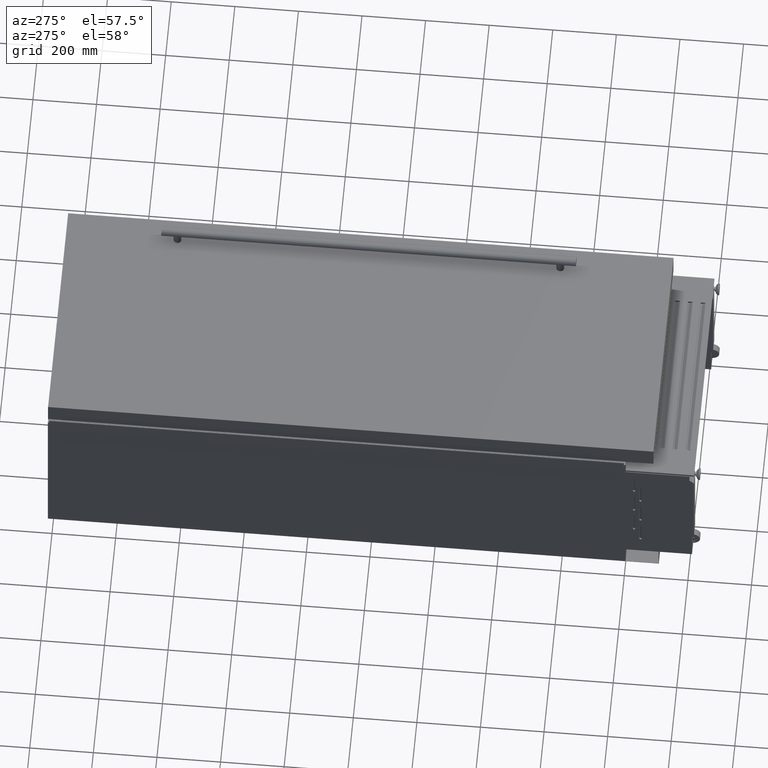
[diagram: clean part render]
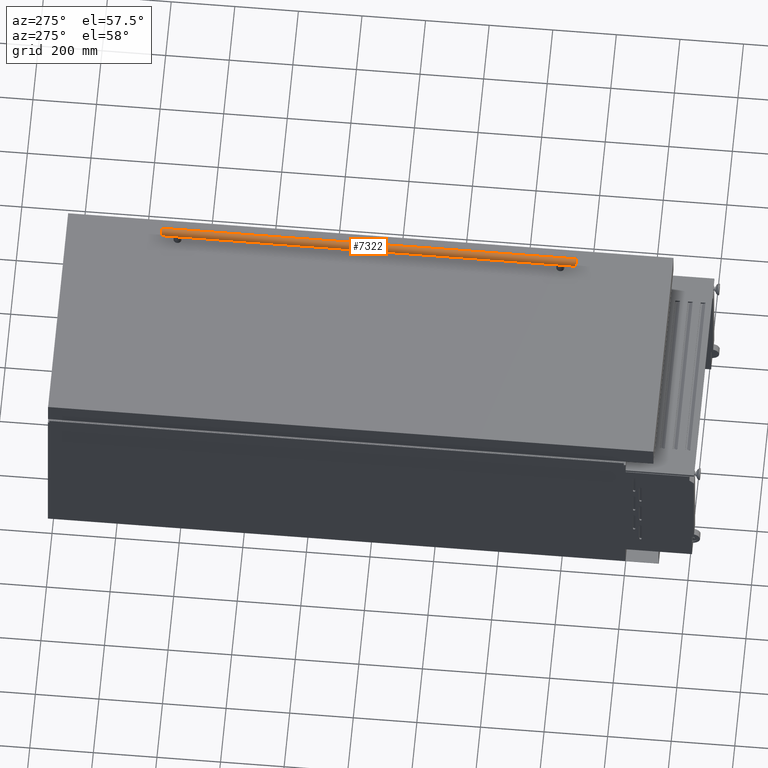
[diagram: same view with one face highlighted and labeled with its STEP entity id]
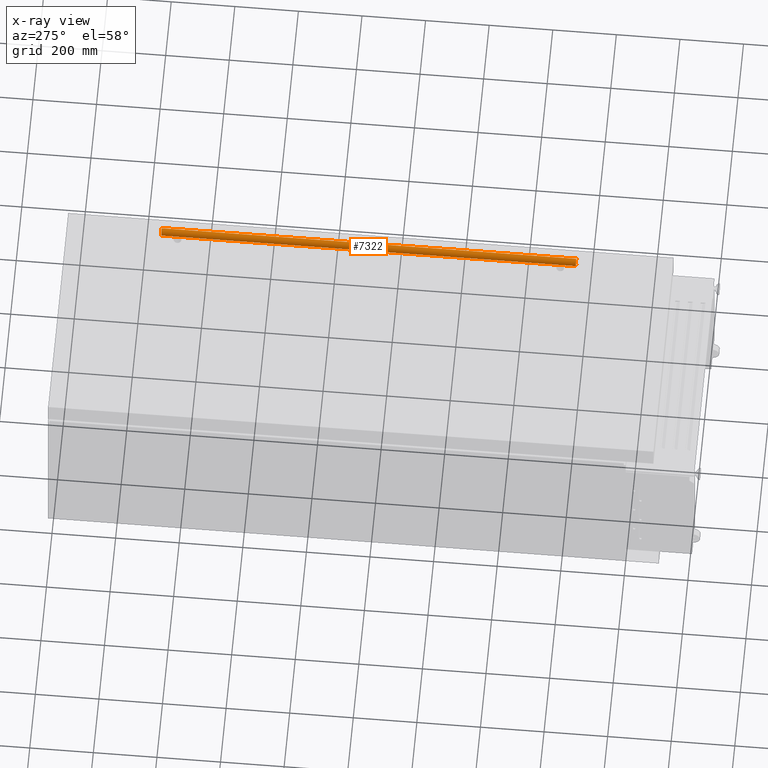
[diagram: x-ray of the same camera — body ghosted, the highlighted face saturated]
A machine part, auxiliary view. The second image highlights one B-rep face of the part: STEP entity #7322.
The next image is the same camera in x-ray: the body ghosted, the highlighted face saturated — about 0% of this face is hidden behind the body in this view.
In plain terms, the highlighted cylindrical surface (edge-blend (fillet) strip) has radius 15 mm, axis along (0, 1, 0).
Its self-contained STEP definition (entity closure, byte-faithful):
#6 = EDGE_CURVE ( 'NONE', #6559, #9181, #1423, .T. ) ;
#45 = CARTESIAN_POINT ( 'NONE',  ( 288.3983060635345600, 677.1304194497183700, 390.0004250495149400 ) ) ;
#139 = CARTESIAN_POINT ( 'NONE',  ( 293.7999997170344400, -630.5764068711927200, 389.0000000000000000 ) ) ;
#417 = CARTESIAN_POINT ( 'NONE',  ( 281.4810145510280100, 663.6890798383223000, 395.4405033786357000 ) ) ;
#441 = ORIENTED_EDGE ( 'NONE', *, *, #1257, .F. ) ;
#614 = CARTESIAN_POINT ( 'NONE',  ( 293.7999997170344400, 653.3499999999999100, 389.0000000000000000 ) ) ;
#622 = EDGE_CURVE ( 'NONE', #3205, #1883, #6158, .T. ) ;
#655 = CARTESIAN_POINT ( 'NONE',  ( 286.0089335414871200, -547.9569016475542200, 391.1608187367766600 ) ) ;
#671 = AXIS2_PLACEMENT_3D ( 'NONE', #4516, #10138, #6141 ) ;
#685 = ORIENTED_EDGE ( 'NONE', *, *, #8914, .F. ) ;
#688 = CARTESIAN_POINT ( 'NONE',  ( 293.3645132533406500, -550.6499999999998600, 388.9999999999999400 ) ) ;
#813 = ORIENTED_EDGE ( 'NONE', *, *, #5618, .T. ) ;
#1191 = CARTESIAN_POINT ( 'NONE',  ( 282.4556428822901400, 660.5858559118584000, 394.1835035344903400 ) ) ;
#1218 = VERTEX_POINT ( 'NONE', #2657 ) ;
#1224 = CARTESIAN_POINT ( 'NONE',  ( 281.3235971358304800, 664.9689333130334000, 395.6725788609355700 ) ) ;
#1257 = EDGE_CURVE ( 'NONE', #1772, #1218, #7026, .T. ) ;
#1303 = CARTESIAN_POINT ( 'NONE',  ( 285.1317777662165400, 656.8355341688419500, 391.7535888721748200 ) ) ;
#1331 = CARTESIAN_POINT ( 'NONE',  ( 281.7612515050690800, -534.7611920588004800, 395.0496099321832200 ) ) ;
#1333 = CARTESIAN_POINT ( 'NONE',  ( 283.1991074757015100, 659.2152901318083900, 393.3835376867566500 ) ) ;
#1410 = CARTESIAN_POINT ( 'NONE',  ( 293.7999997170344400, -630.5764068711927200, 419.0000000000000600 ) ) ;
#1423 = B_SPLINE_CURVE_WITH_KNOTS ( 'NONE', 3,
 ( #3907, #3098, #6163, #5248, #2026, #2823, #9513, #10155, #1541, #5317, #6868, #7689, #9334, #6059, #2061, #2859, #6126, #8491, #7884, #2895, #4496, #1331, #8422, #3692, #8460, #7719, #9300, #3730 ),
 .UNSPECIFIED., .F., .F.,
 ( 4, 2, 2, 2, 2, 2, 2, 2, 2, 2, 2, 2, 2, 4 ),
 ( 0.02092322187912627400, 0.02222909681382319700, 0.02353497174852011600, 0.02614672161791393300, 0.02875847148730775000, 0.03006434642200462400, 0.03137022135670149800, 0.03398197122609505900, 0.03528784616079187800, 0.03659372109548870300, 0.03789959603018552800, 0.03920547096488234700, 0.04051134589957916500, 0.04181722083427599100 ),
 .UNSPECIFIED. ) ;
#1457 = VERTEX_POINT ( 'NONE', #9514 ) ;
#1475 = CARTESIAN_POINT ( 'NONE',  ( 286.9829867141452800, -548.6349817232833200, 390.6334501222696100 ) ) ;
#1513 = CARTESIAN_POINT ( 'NONE',  ( 281.7411559614291700, 669.2474771043845300, 395.0739729880987200 ) ) ;
#1541 = CARTESIAN_POINT ( 'NONE',  ( 287.3175247438619500, -527.4324058253907900, 390.4525111472563000 ) ) ;
#1576 = ORIENTED_EDGE ( 'NONE', *, *, #6, .T. ) ;
#1579 = CARTESIAN_POINT ( 'NONE',  ( 281.2999997170344400, 666.2878971580128100, 395.7084380241115000 ) ) ;
#1611 = DIRECTION ( 'NONE',  ( 0.0000000000000000000, 1.000000000000000000, 0.0000000000000000000 ) ) ;
#1750 = CARTESIAN_POINT ( 'NONE',  ( 286.0089335414871200, 675.6569016475541500, 391.1608187367766600 ) ) ;
#1772 = VERTEX_POINT ( 'NONE', #5311 ) ;
#1883 = VERTEX_POINT ( 'NONE', #10150 ) ;
#1928 = DIRECTION ( 'NONE',  ( 0.0000000000000000000, 1.000000000000000000, 0.0000000000000000000 ) ) ;
#2026 = CARTESIAN_POINT ( 'NONE',  ( 291.6307691087232600, -525.8321130093810300, 389.1515043102354500 ) ) ;
#2061 = CARTESIAN_POINT ( 'NONE',  ( 283.8418646334481500, -530.5553498403950200, 392.7666434624131300 ) ) ;
#2136 = CARTESIAN_POINT ( 'NONE',  ( 286.3330065636996000, 655.8173612685690200, 390.9852680685960400 ) ) ;
#2252 = CIRCLE ( 'NONE', #671, 15.00000000000001400 ) ;
#2266 = CARTESIAN_POINT ( 'NONE',  ( 284.3367448460167000, -546.3258704267096800, 392.3574941667065400 ) ) ;
#2304 = CARTESIAN_POINT ( 'NONE',  ( 281.3229387635268500, -539.0218868432327800, 395.6735697623698200 ) ) ;
#2340 = ORIENTED_EDGE ( 'NONE', *, *, #8229, .F. ) ;
#2341 = CARTESIAN_POINT ( 'NONE',  ( 283.8518013786707600, -545.7283507314431300, 392.7690390147285500 ) ) ;
#2413 = VERTEX_POINT ( 'NONE', #3832 ) ;
#2543 = ORIENTED_EDGE ( 'NONE', *, *, #3713, .F. ) ;
#2623 = ORIENTED_EDGE ( 'NONE', *, *, #7892, .T. ) ;
#2657 = CARTESIAN_POINT ( 'NONE',  ( 293.7999997170344400, -550.6499999999998600, 389.0000000000000000 ) ) ;
#2744 = CYLINDRICAL_SURFACE ( 'NONE', #8310, 15.00000000000001400 ) ;
#2796 = CARTESIAN_POINT ( 'NONE',  ( 287.3175247438619500, 655.1324058253908300, 390.4525111472563000 ) ) ;
#2823 = CARTESIAN_POINT ( 'NONE',  ( 290.3653738183905400, -526.1002302794136100, 389.3734184561007500 ) ) ;
#2859 = CARTESIAN_POINT ( 'NONE',  ( 283.1991074757015100, -531.5152901318084600, 393.3835376867566500 ) ) ;
#2889 = VECTOR ( 'NONE', #3958, 1000.000000000000000 ) ;
#2895 = CARTESIAN_POINT ( 'NONE',  ( 282.1462634298550300, -533.6117100661588200, 394.5528594061349300 ) ) ;
#2897 = CARTESIAN_POINT ( 'NONE',  ( 281.4142805162648500, 664.1090635408372700, 395.5382907119604300 ) ) ;
#3020 = CIRCLE ( 'NONE', #7838, 15.00000000000001400 ) ;
#3067 = CARTESIAN_POINT ( 'NONE',  ( 284.5949808194574200, -546.6158092681558900, 392.1516620761353800 ) ) ;
#3098 = CARTESIAN_POINT ( 'NONE',  ( 293.3657433427645700, -525.6499999999998600, 389.0000000000000600 ) ) ;
#3205 = VERTEX_POINT ( 'NONE', #6628 ) ;
#3206 = CARTESIAN_POINT ( 'NONE',  ( 290.3563638395146400, -550.1973113809599500, 389.3754469842847400 ) ) ;
#3275 = CARTESIAN_POINT ( 'NONE',  ( 285.4140185124994700, 675.1523930854035600, 391.5445892444874400 ) ) ;
#3418 = CARTESIAN_POINT ( 'NONE',  ( 281.2999997170344400, 665.8499999999998000, 395.7084380241115000 ) ) ;
#3535 = ORIENTED_EDGE ( 'NONE', *, *, #9069, .T. ) ;
#3591 = CARTESIAN_POINT ( 'NONE',  ( 282.9974095476863500, 659.5487346565491900, 393.5894986373726900 ) ) ;
#3692 = CARTESIAN_POINT ( 'NONE',  ( 281.4810145510280100, -535.9890798383223700, 395.4405033786357000 ) ) ;
#3700 = VERTEX_POINT ( 'NONE', #3418 ) ;
#3713 = EDGE_CURVE ( 'NONE', #8568, #3700, #5217, .T. ) ;
#3730 = CARTESIAN_POINT ( 'NONE',  ( 281.2999997170344400, -538.1499999999998600, 395.7084380241115000 ) ) ;
#3832 = CARTESIAN_POINT ( 'NONE',  ( 293.7999997170344400, -588.1499999999999800, 419.0000000000000600 ) ) ;
#3907 = CARTESIAN_POINT ( 'NONE',  ( 293.7999997170344400, -525.6499999999999800, 389.0000000000000000 ) ) ;
#3958 = DIRECTION ( 'NONE',  ( 0.0000000000000000000, 1.000000000000000000, 0.0000000000000000000 ) ) ;
#3971 = CARTESIAN_POINT ( 'NONE',  ( 281.4130972868162000, -539.8825948427725100, 395.5400272622234800 ) ) ;
#4430 = EDGE_LOOP ( 'NONE', ( #441, #3535, #2623, #685, #7055, #7413, #2543, #2340, #1576, #813 ) ) ;
#4459 = CARTESIAN_POINT ( 'NONE',  ( 281.2999997170344400, 665.4130147043072200, 395.7084380241114400 ) ) ;
#4496 = CARTESIAN_POINT ( 'NONE',  ( 282.0070557321991500, -533.9856333081759200, 394.7281386416907500 ) ) ;
#4516 = CARTESIAN_POINT ( 'NONE',  ( 293.7999997170344400, -588.1499999999999800, 404.0000000000000000 ) ) ;
#4611 = CARTESIAN_POINT ( 'NONE',  ( 281.4811775969214400, 668.0118886239216600, 395.4402663997156500 ) ) ;
#4614 = VECTOR ( 'NONE', #1928, 1000.000000000000000 ) ;
#4643 = CARTESIAN_POINT ( 'NONE',  ( 282.6144169349912500, -543.7864954820623800, 393.9939795001950500 ) ) ;
#4650 = CARTESIAN_POINT ( 'NONE',  ( 281.9882504886153400, 670.0177240381523200, 394.7414748160737200 ) ) ;
#4806 = CARTESIAN_POINT ( 'NONE',  ( 290.3563638395146400, 677.8973113809597600, 389.3754469842847400 ) ) ;
#5057 = DIRECTION ( 'NONE',  ( 0.0000000000000000000, 1.000000000000000000, 0.0000000000000000000 ) ) ;
#5074 = CARTESIAN_POINT ( 'NONE',  ( 293.7999997170344400, -630.5764068711927200, 389.0000000000000000 ) ) ;
#5117 = DIRECTION ( 'NONE',  ( 0.0000000000000000000, 1.000000000000000000, 0.0000000000000000000 ) ) ;
#5172 = VECTOR ( 'NONE', #5961, 1000.000000000000000 ) ;
#5210 = CARTESIAN_POINT ( 'NONE',  ( 281.6541726845285300, 662.8657317208603700, 395.1965198002221800 ) ) ;
#5217 = B_SPLINE_CURVE_WITH_KNOTS ( 'NONE', 3,
 ( #6870, #6093, #9303, #5249, #10051, #10019, #7587, #6128, #2796, #2136, #6798, #7657, #1303, #9193, #8389, #1333, #3591, #7620, #1191, #7690, #10158, #6061, #5210, #417, #2897, #1224, #4459, #6834 ),
 .UNSPECIFIED., .F., .F.,
 ( 4, 2, 2, 2, 2, 2, 2, 2, 2, 2, 2, 2, 2, 4 ),
 ( 0.02092322187912627400, 0.02222909681382319700, 0.02353497174852011600, 0.02614672161791393300, 0.02875847148730775000, 0.03006434642200462400, 0.03137022135670149800, 0.03398197122609505900, 0.03528784616079187800, 0.03659372109548870300, 0.03789959603018552800, 0.03920547096488234700, 0.04051134589957916500, 0.04181722083427599100 ),
 .UNSPECIFIED. ) ;
#5248 = CARTESIAN_POINT ( 'NONE',  ( 292.0654187408015300, -525.7632726128845200, 389.0942835759132100 ) ) ;
#5249 = CARTESIAN_POINT ( 'NONE',  ( 292.0654187408015300, 653.4632726128843400, 389.0942835759132100 ) ) ;
#5311 = CARTESIAN_POINT ( 'NONE',  ( 293.7999997170344400, -588.1499999999999800, 389.0000000000000000 ) ) ;
#5317 = CARTESIAN_POINT ( 'NONE',  ( 286.3330065636996000, -528.1173612685690800, 390.9852680685960400 ) ) ;
#5460 = CARTESIAN_POINT ( 'NONE',  ( 285.4140185124994700, -547.4523930854036300, 391.5445892444874400 ) ) ;
#5463 = CARTESIAN_POINT ( 'NONE',  ( 282.9846645177189500, 672.1640001808046900, 393.5895219854299400 ) ) ;
#5493 = CARTESIAN_POINT ( 'NONE',  ( 281.9882504886153400, -542.3177240381522800, 394.7414748160737200 ) ) ;
#5597 = CARTESIAN_POINT ( 'NONE',  ( 291.6239168104509600, -550.4667060562211400, 389.1524847895252600 ) ) ;
#5601 = CARTESIAN_POINT ( 'NONE',  ( 292.0598661356017400, 678.2360016230148900, 389.0948869663177400 ) ) ;
#5618 = EDGE_CURVE ( 'NONE', #9181, #1218, #8428, .T. ) ;
#5670 = VECTOR ( 'NONE', #1611, 1000.000000000000000 ) ;
#5745 = CARTESIAN_POINT ( 'NONE',  ( 293.7999997170344400, 678.3499999999998000, 389.0000000000000000 ) ) ;
#5961 = DIRECTION ( 'NONE',  ( 0.0000000000000000000, 1.000000000000000000, 0.0000000000000000000 ) ) ;
#6059 = CARTESIAN_POINT ( 'NONE',  ( 284.3231148128755900, -529.9626123487206500, 392.3535721478746200 ) ) ;
#6061 = CARTESIAN_POINT ( 'NONE',  ( 281.7612515050690800, 662.4611920588000700, 395.0496099321832200 ) ) ;
#6093 = CARTESIAN_POINT ( 'NONE',  ( 293.3657433427645700, 653.3499999999998000, 389.0000000000000600 ) ) ;
#6126 = CARTESIAN_POINT ( 'NONE',  ( 282.9974095476863500, -531.8487346565491400, 393.5894986373726900 ) ) ;
#6128 = CARTESIAN_POINT ( 'NONE',  ( 288.0243537903156700, 654.7327303659128600, 390.1325941192330300 ) ) ;
#6141 = DIRECTION ( 'NONE',  ( 0.0000000000000000000, 0.0000000000000000000, -1.000000000000000000 ) ) ;
#6158 = LINE ( 'NONE', #6259, #2889 ) ;
#6163 = CARTESIAN_POINT ( 'NONE',  ( 292.9319743992580200, -525.6725676289738700, 389.0188222984273800 ) ) ;
#6259 = CARTESIAN_POINT ( 'NONE',  ( 293.7999997170344400, -630.5764068711927200, 389.0000000000000000 ) ) ;
#6270 = CARTESIAN_POINT ( 'NONE',  ( 293.7999997170344400, -550.6499999999998600, 389.0000000000000000 ) ) ;
#6276 = CARTESIAN_POINT ( 'NONE',  ( 283.6243492692202000, 673.1200176343036200, 392.9753222289607500 ) ) ;
#6342 = CARTESIAN_POINT ( 'NONE',  ( 284.5949808194574200, 674.3158092681559300, 392.1516620761353800 ) ) ;
#6370 = CARTESIAN_POINT ( 'NONE',  ( 283.6243492692202000, -545.4200176343036900, 392.9753222289607500 ) ) ;
#6481 = CARTESIAN_POINT ( 'NONE',  ( 288.0284096785557600, 676.9451886448658800, 390.1494140733107100 ) ) ;
#6559 = VERTEX_POINT ( 'NONE', #7434 ) ;
#6628 = CARTESIAN_POINT ( 'NONE',  ( 293.7999997170344400, 678.3499999999998000, 389.0000000000000000 ) ) ;
#6798 = CARTESIAN_POINT ( 'NONE',  ( 286.0162630276330400, 656.0613163883596100, 391.1726685742250400 ) ) ;
#6834 = CARTESIAN_POINT ( 'NONE',  ( 281.2999997170344400, 665.8499999999998000, 395.7084380241115000 ) ) ;
#6868 = CARTESIAN_POINT ( 'NONE',  ( 286.0162630276330400, -528.3613163883596800, 391.1726685742250400 ) ) ;
#6870 = CARTESIAN_POINT ( 'NONE',  ( 293.7999997170344400, 653.3499999999999100, 389.0000000000000000 ) ) ;
#6909 = B_SPLINE_CURVE_WITH_KNOTS ( 'NONE', 3,
 ( #8629, #1579, #10371, #9448, #4611, #1513, #4650, #7111, #5463, #6276, #8665, #10306, #6342, #3275, #1750, #7346, #7961, #6481, #45, #8906, #4806, #9628, #5601, #7242, #9591, #5745 ),
 .UNSPECIFIED., .F., .F.,
 ( 4, 2, 2, 2, 2, 2, 2, 2, 2, 2, 2, 2, 4 ),
 ( 0.04181722083427599100, 0.04312582075345161600, 0.04443442067262724100, 0.04705162051097822700, 0.04966882034932920700, 0.05097742026850486700, 0.05228602018768051900, 0.05490322002603154100, 0.05621181994520702700, 0.05752041986438251300, 0.06013761970273354100, 0.06144621962190896500, 0.06275481954108440300 ),
 .UNSPECIFIED. ) ;
#7026 = LINE ( 'NONE', #5074, #4614 ) ;
#7055 = ORIENTED_EDGE ( 'NONE', *, *, #622, .F. ) ;
#7111 = CARTESIAN_POINT ( 'NONE',  ( 282.6144169349912500, 671.4864954820623100, 393.9939795001950500 ) ) ;
#7140 = CARTESIAN_POINT ( 'NONE',  ( 287.3213770433026200, -548.8477526092555100, 390.4656943164312100 ) ) ;
#7179 = CARTESIAN_POINT ( 'NONE',  ( 281.2999997170344400, -538.5878971580128800, 395.7084380241115000 ) ) ;
#7242 = CARTESIAN_POINT ( 'NONE',  ( 292.9293878825681600, 678.3273048420019200, 389.0189287945832500 ) ) ;
#7292 = LINE ( 'NONE', #139, #5670 ) ;
#7322 = ADVANCED_FACE ( 'NONE', ( #8506 ), #2744, .T. ) ;
#7346 = CARTESIAN_POINT ( 'NONE',  ( 286.9829867141452800, 676.3349817232830200, 390.6334501222696100 ) ) ;
#7413 = ORIENTED_EDGE ( 'NONE', *, *, #9790, .F. ) ;
#7434 = CARTESIAN_POINT ( 'NONE',  ( 293.7999997170344400, -525.6499999999999800, 389.0000000000000000 ) ) ;
#7504 = CARTESIAN_POINT ( 'NONE',  ( 293.7999997170344400, 715.8499999999999100, 404.0000000000000000 ) ) ;
#7587 = CARTESIAN_POINT ( 'NONE',  ( 289.5594402050829800, 654.0614706170181300, 389.5888693449002200 ) ) ;
#7601 = CARTESIAN_POINT ( 'NONE',  ( 293.7999997170344400, -630.5764068711927200, 404.0000000000000000 ) ) ;
#7620 = CARTESIAN_POINT ( 'NONE',  ( 282.6258349230060400, 660.2339568688119000, 393.9893789331501400 ) ) ;
#7657 = CARTESIAN_POINT ( 'NONE',  ( 285.4159114750261800, 656.5703476331841600, 391.5567667904667200 ) ) ;
#7689 = CARTESIAN_POINT ( 'NONE',  ( 285.4159114750261800, -528.8703476331840000, 391.5567667904667200 ) ) ;
#7690 = CARTESIAN_POINT ( 'NONE',  ( 282.1462634298550300, 661.3117100661587500, 394.5528594061349300 ) ) ;
#7719 = CARTESIAN_POINT ( 'NONE',  ( 281.3235971358304800, -537.2689333130337000, 395.6725788609355700 ) ) ;
#7838 = AXIS2_PLACEMENT_3D ( 'NONE', #7504, #5057, #9063 ) ;
#7852 = CARTESIAN_POINT ( 'NONE',  ( 281.7411559614291700, -541.5474771043844800, 395.0739729880987200 ) ) ;
#7884 = CARTESIAN_POINT ( 'NONE',  ( 282.4556428822901400, -532.8858559118585800, 394.1835035344903400 ) ) ;
#7887 = CARTESIAN_POINT ( 'NONE',  ( 292.0598661356017400, -550.5360016230149500, 389.0948869663177400 ) ) ;
#7892 = EDGE_CURVE ( 'NONE', #2413, #1457, #10201, .T. ) ;
#7957 = CARTESIAN_POINT ( 'NONE',  ( 281.4811775969214400, -540.3118886239218500, 395.4402663997156500 ) ) ;
#7961 = CARTESIAN_POINT ( 'NONE',  ( 287.3213770433026200, 676.5477526092554400, 390.4656943164312100 ) ) ;
#7992 = CARTESIAN_POINT ( 'NONE',  ( 289.5515593496211300, -549.9358128101512200, 389.5911025082907000 ) ) ;
#8229 = EDGE_CURVE ( 'NONE', #6559, #8568, #7292, .T. ) ;
#8310 = AXIS2_PLACEMENT_3D ( 'NONE', #7601, #5117, #8335 ) ;
#8335 = DIRECTION ( 'NONE',  ( 0.0000000000000000000, 0.0000000000000000000, 1.000000000000000000 ) ) ;
#8389 = CARTESIAN_POINT ( 'NONE',  ( 283.8418646334481500, 658.2553498403948400, 392.7666434624131300 ) ) ;
#8422 = CARTESIAN_POINT ( 'NONE',  ( 281.6541726845285300, -535.1657317208604400, 395.1965198002221800 ) ) ;
#8428 = B_SPLINE_CURVE_WITH_KNOTS ( 'NONE', 3,
 ( #8691, #7179, #2304, #3971, #7957, #7852, #5493, #4643, #10366, #6370, #2341, #2266, #3067, #5460, #655, #1475, #7140, #9588, #9552, #7992, #3206, #5597, #7887, #9480, #688, #6270 ),
 .UNSPECIFIED., .F., .F.,
 ( 4, 2, 2, 2, 2, 2, 2, 2, 2, 2, 2, 2, 4 ),
 ( 0.04181722083427599100, 0.04312582075345161600, 0.04443442067262724100, 0.04705162051097822700, 0.04966882034932920700, 0.05097742026850486700, 0.05228602018768051900, 0.05490322002603154100, 0.05621181994520702700, 0.05752041986438251300, 0.06013761970273354100, 0.06144621962190896500, 0.06275481954108440300 ),
 .UNSPECIFIED. ) ;
#8460 = CARTESIAN_POINT ( 'NONE',  ( 281.4142805162648500, -536.4090635408374500, 395.5382907119604300 ) ) ;
#8491 = CARTESIAN_POINT ( 'NONE',  ( 282.6258349230060400, -532.5339568688118600, 393.9893789331501400 ) ) ;
#8506 = FACE_OUTER_BOUND ( 'NONE', #4430, .T. ) ;
#8568 = VERTEX_POINT ( 'NONE', #614 ) ;
#8629 = CARTESIAN_POINT ( 'NONE',  ( 281.2999997170344400, 665.8499999999998000, 395.7084380241115000 ) ) ;
#8665 = CARTESIAN_POINT ( 'NONE',  ( 283.8518013786707600, 673.4283507314430600, 392.7690390147285500 ) ) ;
#8691 = CARTESIAN_POINT ( 'NONE',  ( 281.2999997170344400, -538.1499999999998600, 395.7084380241115000 ) ) ;
#8699 = CARTESIAN_POINT ( 'NONE',  ( 281.2999997170344400, -538.1499999999998600, 395.7084380241115000 ) ) ;
#8906 = CARTESIAN_POINT ( 'NONE',  ( 289.5515593496211300, 677.6358128101511500, 389.5911025082907000 ) ) ;
#8914 = EDGE_CURVE ( 'NONE', #1883, #1457, #3020, .T. ) ;
#9063 = DIRECTION ( 'NONE',  ( 0.0000000000000000000, 0.0000000000000000000, 1.000000000000000000 ) ) ;
#9069 = EDGE_CURVE ( 'NONE', #1772, #2413, #2252, .T. ) ;
#9181 = VERTEX_POINT ( 'NONE', #8699 ) ;
#9193 = CARTESIAN_POINT ( 'NONE',  ( 284.3231148128755900, 657.6626123487204700, 392.3535721478746200 ) ) ;
#9300 = CARTESIAN_POINT ( 'NONE',  ( 281.2999997170344400, -537.7130147043072800, 395.7084380241114400 ) ) ;
#9303 = CARTESIAN_POINT ( 'NONE',  ( 292.9319743992580200, 653.3725676289739100, 389.0188222984273800 ) ) ;
#9334 = CARTESIAN_POINT ( 'NONE',  ( 285.1317777662165400, -529.1355341688421300, 391.7535888721748200 ) ) ;
#9448 = CARTESIAN_POINT ( 'NONE',  ( 281.4130972868162000, 667.5825948427725500, 395.5400272622234800 ) ) ;
#9480 = CARTESIAN_POINT ( 'NONE',  ( 292.9293878825681600, -550.6273048420021000, 389.0189287945832500 ) ) ;
#9513 = CARTESIAN_POINT ( 'NONE',  ( 289.5594402050829800, -526.3614706170183100, 389.5888693449002200 ) ) ;
#9514 = CARTESIAN_POINT ( 'NONE',  ( 293.7999997170344400, 715.8499999999999100, 419.0000000000000600 ) ) ;
#9552 = CARTESIAN_POINT ( 'NONE',  ( 288.3983060635345600, -549.4304194497182200, 390.0004250495149400 ) ) ;
#9588 = CARTESIAN_POINT ( 'NONE',  ( 288.0284096785557600, -549.2451886448660600, 390.1494140733107100 ) ) ;
#9591 = CARTESIAN_POINT ( 'NONE',  ( 293.3645132533406500, 678.3499999999996800, 388.9999999999999400 ) ) ;
#9628 = CARTESIAN_POINT ( 'NONE',  ( 291.6239168104509600, 678.1667060562214100, 389.1524847895252600 ) ) ;
#9790 = EDGE_CURVE ( 'NONE', #3700, #3205, #6909, .T. ) ;
#10019 = CARTESIAN_POINT ( 'NONE',  ( 290.3653738183905400, 653.8002302794134300, 389.3734184561007500 ) ) ;
#10051 = CARTESIAN_POINT ( 'NONE',  ( 291.6307691087232600, 653.5321130093809600, 389.1515043102354500 ) ) ;
#10138 = DIRECTION ( 'NONE',  ( -0.0000000000000000000, 1.000000000000000000, -0.0000000000000000000 ) ) ;
#10150 = CARTESIAN_POINT ( 'NONE',  ( 293.7999997170344400, 715.8499999999999100, 389.0000000000000000 ) ) ;
#10155 = CARTESIAN_POINT ( 'NONE',  ( 288.0243537903156700, -527.0327303659128100, 390.1325941192330300 ) ) ;
#10158 = CARTESIAN_POINT ( 'NONE',  ( 282.0070557321991500, 661.6856333081759700, 394.7281386416907500 ) ) ;
#10201 = LINE ( 'NONE', #1410, #5172 ) ;
#10306 = CARTESIAN_POINT ( 'NONE',  ( 284.3367448460167000, 674.0258704267096200, 392.3574941667065400 ) ) ;
#10366 = CARTESIAN_POINT ( 'NONE',  ( 282.9846645177189500, -544.4640001808046500, 393.5895219854299400 ) ) ;
#10371 = CARTESIAN_POINT ( 'NONE',  ( 281.3229387635268500, 666.7218868432326000, 395.6735697623698200 ) ) ;